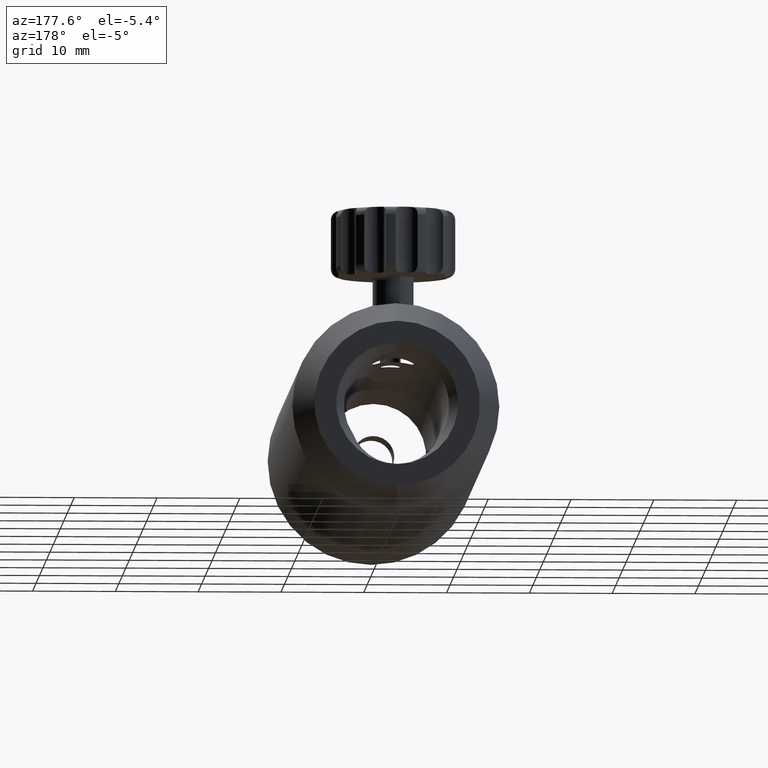
[diagram: clean part render]
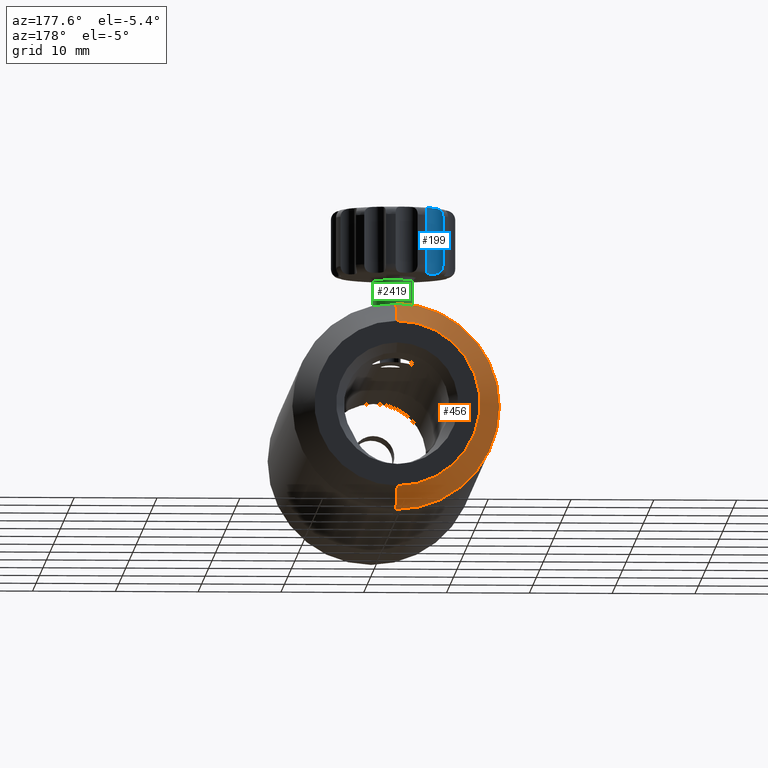
[diagram: same view with three faces highlighted in distinct colors, each labeled with its STEP entity id]
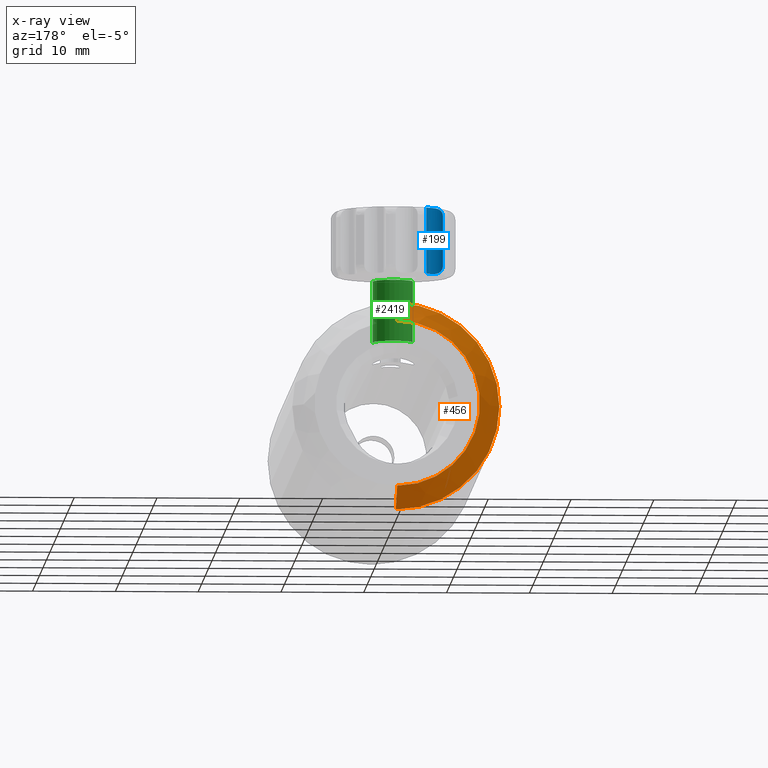
[diagram: x-ray of the same camera — body ghosted, the three highlighted faces saturated]
A machine part, auxiliary view with three faces highlighted in distinct colors.
The next image is the same camera in x-ray (body ghosted, the three faces saturated) — at least one of them is partly hidden behind the body in this view.
Their STEP definitions:

[orange] entity #456 — the highlighted conical surface has half-angle 32 deg.
#234 = CARTESIAN_POINT ( 'NONE',  ( 1.402682666781482000E-014, 62.47173567099246600, 12.49999999999999100 ) ) ;
#264 = CARTESIAN_POINT ( 'NONE',  ( 0.0000000000000000000, 62.47173567099246600, 0.0000000000000000000 ) ) ;
#281 = ORIENTED_EDGE ( 'NONE', *, *, #623, .T. ) ;
#432 = CARTESIAN_POINT ( 'NONE',  ( 1.121724019454641000E-014, 66.47173567099247300, 10.00052259236270500 ) ) ;
#456 = ADVANCED_FACE ( 'NONE', ( #2272 ), #2756, .T. ) ;
#569 = DIRECTION ( 'NONE',  ( -9.992007221626420700E-016, 0.0000000000000000000, -1.000000000000000000 ) ) ;
#617 = VECTOR ( 'NONE', #3233, 1000.000000000000100 ) ;
#623 = EDGE_CURVE ( 'NONE', #1648, #2306, #2044, .T. ) ;
#896 = DIRECTION ( 'NONE',  ( 1.502285461903961200E-018, -1.000000000000000000, -4.971860657915503100E-018 ) ) ;
#1253 = VERTEX_POINT ( 'NONE', #1361 ) ;
#1281 = VERTEX_POINT ( 'NONE', #234 ) ;
#1361 = CARTESIAN_POINT ( 'NONE',  ( -1.248399988518539900E-014, 62.47173567099246600, -12.49999999999999100 ) ) ;
#1362 = AXIS2_PLACEMENT_3D ( 'NONE', #2540, #1940, #2801 ) ;
#1429 = AXIS2_PLACEMENT_3D ( 'NONE', #1993, #3420, #1761 ) ;
#1525 = CARTESIAN_POINT ( 'NONE',  ( -9.992529396292632200E-015, 66.47173567099247300, -10.00052259236270500 ) ) ;
#1648 = VERTEX_POINT ( 'NONE', #3514 ) ;
#1696 = CARTESIAN_POINT ( 'NONE',  ( -9.992529396292632200E-015, 66.47173567099247300, -10.00052259236270500 ) ) ;
#1761 = DIRECTION ( 'NONE',  ( -9.992007221626420700E-016, 0.0000000000000000000, -1.000000000000000000 ) ) ;
#1940 = DIRECTION ( 'NONE',  ( 1.502285461903961200E-018, -1.000000000000000000, -4.971860657915503100E-018 ) ) ;
#1993 = CARTESIAN_POINT ( 'NONE',  ( 0.0000000000000000000, 66.47173567099247300, 0.0000000000000000000 ) ) ;
#2006 = EDGE_LOOP ( 'NONE', ( #2167, #281, #3330, #3327 ) ) ;
#2044 = CIRCLE ( 'NONE', #1362, 10.00052259236270500 ) ;
#2167 = ORIENTED_EDGE ( 'NONE', *, *, #3573, .F. ) ;
#2272 = FACE_OUTER_BOUND ( 'NONE', #2006, .T. ) ;
#2303 = EDGE_CURVE ( 'NONE', #1281, #1253, #2833, .T. ) ;
#2306 = VERTEX_POINT ( 'NONE', #1696 ) ;
#2470 = AXIS2_PLACEMENT_3D ( 'NONE', #264, #896, #569 ) ;
#2534 = VECTOR ( 'NONE', #3439, 1000.000000000000100 ) ;
#2540 = CARTESIAN_POINT ( 'NONE',  ( 0.0000000000000000000, 66.47173567099247300, 0.0000000000000000000 ) ) ;
#2756 = CONICAL_SURFACE ( 'NONE', #1429, 10.00052259236270500, 0.5585053606381802400 ) ;
#2801 = DIRECTION ( 'NONE',  ( -9.992007221626420700E-016, 0.0000000000000000000, -1.000000000000000000 ) ) ;
#2833 = CIRCLE ( 'NONE', #2470, 12.49999999999998600 ) ;
#3141 = EDGE_CURVE ( 'NONE', #2306, #1253, #3146, .T. ) ;
#3146 = LINE ( 'NONE', #1525, #2534 ) ;
#3233 = DIRECTION ( 'NONE',  ( 5.956661149105315200E-016, -0.8480480961564289500, 0.5299192642332000200 ) ) ;
#3320 = LINE ( 'NONE', #432, #617 ) ;
#3327 = ORIENTED_EDGE ( 'NONE', *, *, #2303, .F. ) ;
#3330 = ORIENTED_EDGE ( 'NONE', *, *, #3141, .T. ) ;
#3420 = DIRECTION ( 'NONE',  ( 1.502285461903961200E-018, -1.000000000000000000, -4.971860657915503100E-018 ) ) ;
#3439 = DIRECTION ( 'NONE',  ( -5.282217011838582700E-016, -0.8480480961564289500, -0.5299192642332000200 ) ) ;
#3514 = CARTESIAN_POINT ( 'NONE',  ( 1.262203343118063000E-014, 66.47173567099247300, 10.00052259236271500 ) ) ;
#3573 = EDGE_CURVE ( 'NONE', #1648, #1281, #3320, .T. ) ;

[blue] entity #199 — the highlighted cylindrical surface (edge-blend (fillet) strip) has radius 1.5 mm, axis along (-0, 0, -1).
#13 = LINE ( 'NONE', #625, #2568 ) ;
#21 = B_SPLINE_CURVE_WITH_KNOTS ( 'NONE', 3,
 ( #3154, #2293, #2024, #1211, #1500, #1776, #1675, #2779, #2542, #3089, #1684, #2495 ),
 .UNSPECIFIED., .F., .F.,
 ( 4, 2, 2, 2, 2, 4 ),
 ( 0.002250700025045506900, 0.002813171031116871800, 0.003375642037188237200, 0.003656877540223917500, 0.003938113043259597300, 0.004500584049330945800 ),
 .UNSPECIFIED. ) ;
#136 = CARTESIAN_POINT ( 'NONE',  ( -5.072901397835521700, 59.05412958879083600, 16.39540171856378600 ) ) ;
#186 = EDGE_CURVE ( 'NONE', #3363, #2063, #2434, .T. ) ;
#199 = ADVANCED_FACE ( 'NONE', ( #1112 ), #848, .F. ) ;
#202 = CARTESIAN_POINT ( 'NONE',  ( -3.880331937683143600, 59.81697460733942500, 24.34543162292353800 ) ) ;
#283 = CARTESIAN_POINT ( 'NONE',  ( -4.117641849008298200, 59.50284496503154200, 24.34999999999997700 ) ) ;
#417 = CARTESIAN_POINT ( 'NONE',  ( -4.526967578601089700, 59.20129711382363500, 16.34751958455900600 ) ) ;
#532 = CARTESIAN_POINT ( 'NONE',  ( -3.776553097164375000, 60.05770353819390600, 16.37992434585413900 ) ) ;
#554 = VERTEX_POINT ( 'NONE', #532 ) ;
#625 = CARTESIAN_POINT ( 'NONE',  ( -5.822271451217117600, 59.19943650208803400, 20.34999999999997700 ) ) ;
#647 = EDGE_CURVE ( 'NONE', #658, #554, #2966, .T. ) ;
#658 = VERTEX_POINT ( 'NONE', #1982 ) ;
#785 = CARTESIAN_POINT ( 'NONE',  ( -4.216923941984945600, 59.41820435759243700, 16.34999999999997700 ) ) ;
#794 = CARTESIAN_POINT ( 'NONE',  ( -3.819890182268797400, 59.93567552825479100, 16.36069694899006100 ) ) ;
#848 = CYLINDRICAL_SURFACE ( 'NONE', #1072, 1.500000000000003100 ) ;
#954 = EDGE_CURVE ( 'NONE', #2063, #554, #2377, .T. ) ;
#964 = CARTESIAN_POINT ( 'NONE',  ( -4.216914412153568200, 59.41821248195680000, 24.34999999999997700 ) ) ;
#989 = B_SPLINE_CURVE_WITH_KNOTS ( 'NONE', 3,
 ( #1136, #3656, #202, #3343, #283, #1613 ),
 .UNSPECIFIED., .F., .F.,
 ( 4, 2, 4 ),
 ( 0.001466424524454351900, 0.001858562274749929200, 0.002250700025045506900 ),
 .UNSPECIFIED. ) ;
#1033 = DIRECTION ( 'NONE',  ( 0.9423380927516600300, -0.3346623954811234800, 0.0000000000000000000 ) ) ;
#1072 = AXIS2_PLACEMENT_3D ( 'NONE', #2941, #1831, #1033 ) ;
#1112 = FACE_OUTER_BOUND ( 'NONE', #2884, .T. ) ;
#1128 = ORIENTED_EDGE ( 'NONE', *, *, #954, .F. ) ;
#1136 = CARTESIAN_POINT ( 'NONE',  ( -3.776553097158425600, 60.05770353821061700, 24.32007565414318900 ) ) ;
#1211 = CARTESIAN_POINT ( 'NONE',  ( -4.879166101778564800, 59.08048064492676600, 24.33131165049940100 ) ) ;
#1285 = CARTESIAN_POINT ( 'NONE',  ( -5.822271451217097200, 59.19943650208805500, 17.16187099171112600 ) ) ;
#1336 = CARTESIAN_POINT ( 'NONE',  ( -4.117359952566944000, 59.50308385392358400, 16.34999999999997700 ) ) ;
#1483 = CARTESIAN_POINT ( 'NONE',  ( -5.822271451217126500, 59.19943650208803400, 23.34999999999996900 ) ) ;
#1492 = ORIENTED_EDGE ( 'NONE', *, *, #647, .T. ) ;
#1500 = CARTESIAN_POINT ( 'NONE',  ( -5.069704273404506800, 59.05423315436900100, 24.30553950480662800 ) ) ;
#1562 = CARTESIAN_POINT ( 'NONE',  ( -4.216923941984945600, 59.41820435759243700, 16.34999999999997700 ) ) ;
#1613 = CARTESIAN_POINT ( 'NONE',  ( -4.216914412153568200, 59.41821248195680000, 24.34999999999997700 ) ) ;
#1669 = ORIENTED_EDGE ( 'NONE', *, *, #186, .F. ) ;
#1675 = CARTESIAN_POINT ( 'NONE',  ( -5.413751311141496100, 59.07463394209509700, 24.15030037055339600 ) ) ;
#1684 = CARTESIAN_POINT ( 'NONE',  ( -5.822271451218503200, 59.19943650208870900, 23.54040238234086500 ) ) ;
#1776 = CARTESIAN_POINT ( 'NONE',  ( -5.333232083304513300, 59.06396030356057700, 24.19668968370597600 ) ) ;
#1808 = ORIENTED_EDGE ( 'NONE', *, *, #2268, .F. ) ;
#1818 = CARTESIAN_POINT ( 'NONE',  ( -5.773140476955845200, 59.17358795661838400, 16.97473436945944100 ) ) ;
#1831 = DIRECTION ( 'NONE',  ( -1.320794089857396400E-015, 3.565610212294519300E-016, -1.000000000000000000 ) ) ;
#1982 = CARTESIAN_POINT ( 'NONE',  ( -3.776553097158425600, 60.05770353821061700, 24.32007565414318900 ) ) ;
#2024 = CARTESIAN_POINT ( 'NONE',  ( -4.526618120787031100, 59.20154355535974800, 24.35245110409378500 ) ) ;
#2063 = VERTEX_POINT ( 'NONE', #2074 ) ;
#2074 = CARTESIAN_POINT ( 'NONE',  ( -4.216923941984945600, 59.41820435759243700, 16.34999999999997700 ) ) ;
#2098 = CARTESIAN_POINT ( 'NONE',  ( -4.880636698562078400, 59.08010274281706100, 16.36882705403931100 ) ) ;
#2166 = VERTEX_POINT ( 'NONE', #1483 ) ;
#2171 = CARTESIAN_POINT ( 'NONE',  ( -4.028138766025162600, 59.60214722907998200, 16.34938421824422900 ) ) ;
#2268 = EDGE_CURVE ( 'NONE', #2166, #3363, #13, .T. ) ;
#2285 = EDGE_CURVE ( 'NONE', #3608, #2166, #21, .T. ) ;
#2293 = CARTESIAN_POINT ( 'NONE',  ( -4.359308095050677100, 59.29681810494140800, 24.34999999999998400 ) ) ;
#2377 = B_SPLINE_CURVE_WITH_KNOTS ( 'NONE', 3,
 ( #785, #1336, #2171, #2443, #794, #2736 ),
 .UNSPECIFIED., .F., .F.,
 ( 4, 2, 4 ),
 ( 0.002339469482553244600, 0.002731805380103765600, 0.003124141277654287100 ),
 .UNSPECIFIED. ) ;
#2434 = B_SPLINE_CURVE_WITH_KNOTS ( 'NONE', 3,
 ( #3191, #1285, #1818, #2653, #3510, #3206, #3492, #136, #2098, #417, #3220, #1562 ),
 .UNSPECIFIED., .F., .F.,
 ( 4, 2, 2, 2, 2, 4 ),
 ( 8.835109272916359000E-005, 0.0006511306901851788500, 0.0009325204889131889600, 0.001213910287641199000, 0.001776689885097221600, 0.002339469482553244600 ),
 .UNSPECIFIED. ) ;
#2443 = CARTESIAN_POINT ( 'NONE',  ( -3.880486044152697800, 59.81674440491354300, 16.35456208300845300 ) ) ;
#2495 = CARTESIAN_POINT ( 'NONE',  ( -5.822271451217126500, 59.19943650208803400, 23.34999999999996900 ) ) ;
#2542 = CARTESIAN_POINT ( 'NONE',  ( -5.621198203874795000, 59.12202172424896000, 23.96309205946241100 ) ) ;
#2550 = DIRECTION ( 'NONE',  ( -1.320794089857396400E-015, 3.565610212294519300E-016, -1.000000000000000000 ) ) ;
#2568 = VECTOR ( 'NONE', #2572, 1000.000000000000000 ) ;
#2572 = DIRECTION ( 'NONE',  ( -1.320794089857396400E-015, 3.565610212294519300E-016, -1.000000000000000000 ) ) ;
#2653 = CARTESIAN_POINT ( 'NONE',  ( -5.622288713885859000, 59.12233884413436200, 16.73812726182523000 ) ) ;
#2736 = CARTESIAN_POINT ( 'NONE',  ( -3.776553097164375000, 60.05770353819390600, 16.37992434585413900 ) ) ;
#2779 = CARTESIAN_POINT ( 'NONE',  ( -5.558499914504361400, 59.10377729270177100, 24.03319940243524800 ) ) ;
#2821 = CARTESIAN_POINT ( 'NONE',  ( -5.822271451217126500, 59.19943650208803400, 17.34999999999998400 ) ) ;
#2867 = VECTOR ( 'NONE', #2550, 1000.000000000000000 ) ;
#2884 = EDGE_LOOP ( 'NONE', ( #3494, #1492, #1128, #1669, #1808, #3278 ) ) ;
#2941 = CARTESIAN_POINT ( 'NONE',  ( -5.190060236289139300, 60.55969713142322800, 24.34999999999997700 ) ) ;
#2966 = LINE ( 'NONE', #3625, #2867 ) ;
#3089 = CARTESIAN_POINT ( 'NONE',  ( -5.771299482503027700, 59.17285790764457000, 23.72911589602803100 ) ) ;
#3154 = CARTESIAN_POINT ( 'NONE',  ( -4.216914412153568200, 59.41821248195680000, 24.34999999999997700 ) ) ;
#3191 = CARTESIAN_POINT ( 'NONE',  ( -5.822271451217126500, 59.19943650208803400, 17.34999999999998400 ) ) ;
#3206 = CARTESIAN_POINT ( 'NONE',  ( -5.416138015169672700, 59.07498750115088600, 16.55119712419116200 ) ) ;
#3220 = CARTESIAN_POINT ( 'NONE',  ( -4.359741823895869400, 59.29645039861053800, 16.34999999999998700 ) ) ;
#3278 = ORIENTED_EDGE ( 'NONE', *, *, #2285, .F. ) ;
#3343 = CARTESIAN_POINT ( 'NONE',  ( -4.028246890950413200, 59.60198385776369900, 24.35062046307281800 ) ) ;
#3351 = EDGE_CURVE ( 'NONE', #658, #3608, #989, .T. ) ;
#3363 = VERTEX_POINT ( 'NONE', #2821 ) ;
#3492 = CARTESIAN_POINT ( 'NONE',  ( -5.334501834138619000, 59.06411979155580400, 16.50402759177797700 ) ) ;
#3494 = ORIENTED_EDGE ( 'NONE', *, *, #3351, .F. ) ;
#3510 = CARTESIAN_POINT ( 'NONE',  ( -5.561147785622688700, 59.10444186891546500, 16.66939133577747600 ) ) ;
#3608 = VERTEX_POINT ( 'NONE', #964 ) ;
#3625 = CARTESIAN_POINT ( 'NONE',  ( -3.776553097161646100, 60.05770353820154400, 24.34999999999997700 ) ) ;
#3656 = CARTESIAN_POINT ( 'NONE',  ( -3.820030081487216100, 59.93528160182031400, 24.33936512020235900 ) ) ;

[green] entity #2419 — the highlighted cylindrical surface (edge-blend (fillet) strip) has radius 2.4702 mm, axis along (0, -0, 1).
#28 = DIRECTION ( 'NONE',  ( 1.320794089857396400E-015, -3.565610212294519300E-016, 1.000000000000000000 ) ) ;
#55 = CARTESIAN_POINT ( 'NONE',  ( -2.327721257236896200, 55.29840369805326400, 15.84999999999997100 ) ) ;
#342 = VERTEX_POINT ( 'NONE', #1121 ) ;
#424 = LINE ( 'NONE', #961, #1828 ) ;
#555 = CYLINDRICAL_SURFACE ( 'NONE', #1844, 2.470155112205955300 ) ;
#561 = FACE_OUTER_BOUND ( 'NONE', #1422, .T. ) ;
#661 = DIRECTION ( 'NONE',  ( -0.9423380927516602500, 0.3346623954811228700, 0.0000000000000000000 ) ) ;
#751 = CARTESIAN_POINT ( 'NONE',  ( 4.676777469572908100E-014, 54.47173567099248700, 8.464858828943423700 ) ) ;
#775 = DIRECTION ( 'NONE',  ( -0.9423380927516602500, 0.3346623954811229200, 0.0000000000000000000 ) ) ;
#910 = CARTESIAN_POINT ( 'NONE',  ( 1.311783443367546500E-013, 54.47173567099245900, 77.09721697122448300 ) ) ;
#937 = ORIENTED_EDGE ( 'NONE', *, *, #3423, .T. ) ;
#941 = CARTESIAN_POINT ( 'NONE',  ( -2.327721257236792200, 55.29840369805324200, 77.09721697122448300 ) ) ;
#961 = CARTESIAN_POINT ( 'NONE',  ( 2.327721257237054300, 53.64506764393166800, 77.09721697122448300 ) ) ;
#962 = DIRECTION ( 'NONE',  ( 1.320794089857396400E-015, -3.565610212294519300E-016, 1.000000000000000000 ) ) ;
#1006 = DIRECTION ( 'NONE',  ( 1.320794089857396400E-015, -3.565610212294519300E-016, 1.000000000000000000 ) ) ;
#1121 = CARTESIAN_POINT ( 'NONE',  ( 2.327721257236947200, 53.64506764393169600, 15.84999999999996800 ) ) ;
#1158 = EDGE_CURVE ( 'NONE', #2050, #1922, #2753, .T. ) ;
#1327 = DIRECTION ( 'NONE',  ( 1.320794089857396400E-015, -3.565610212294519300E-016, 1.000000000000000000 ) ) ;
#1383 = AXIS2_PLACEMENT_3D ( 'NONE', #751, #1327, #775 ) ;
#1422 = EDGE_LOOP ( 'NONE', ( #3606, #2097, #937, #1953 ) ) ;
#1828 = VECTOR ( 'NONE', #1006, 1000.000000000000000 ) ;
#1844 = AXIS2_PLACEMENT_3D ( 'NONE', #910, #962, #661 ) ;
#1922 = VERTEX_POINT ( 'NONE', #3321 ) ;
#1953 = ORIENTED_EDGE ( 'NONE', *, *, #2839, .F. ) ;
#1975 = EDGE_CURVE ( 'NONE', #2050, #342, #424, .T. ) ;
#2050 = VERTEX_POINT ( 'NONE', #2340 ) ;
#2097 = ORIENTED_EDGE ( 'NONE', *, *, #1158, .T. ) ;
#2284 = DIRECTION ( 'NONE',  ( -0.9423380927516602500, 0.3346623954811228700, 0.0000000000000000000 ) ) ;
#2340 = CARTESIAN_POINT ( 'NONE',  ( 2.327721257236962300, 53.64506764393168900, 8.464858828943420100 ) ) ;
#2419 = ADVANCED_FACE ( 'NONE', ( #561 ), #555, .T. ) ;
#2557 = DIRECTION ( 'NONE',  ( 1.320794089857396400E-015, -3.565610212294519300E-016, 1.000000000000000000 ) ) ;
#2562 = VERTEX_POINT ( 'NONE', #55 ) ;
#2576 = LINE ( 'NONE', #941, #3237 ) ;
#2753 = CIRCLE ( 'NONE', #1383, 2.470155112205954900 ) ;
#2839 = EDGE_CURVE ( 'NONE', #342, #2562, #2873, .T. ) ;
#2873 = CIRCLE ( 'NONE', #2876, 2.470155112205955300 ) ;
#2876 = AXIS2_PLACEMENT_3D ( 'NONE', #3359, #28, #2284 ) ;
#3237 = VECTOR ( 'NONE', #2557, 1000.000000000000000 ) ;
#3321 = CARTESIAN_POINT ( 'NONE',  ( -2.327721257236875700, 55.29840369805327100, 8.464858828943423700 ) ) ;
#3359 = CARTESIAN_POINT ( 'NONE',  ( 2.701658341486279400E-014, 54.47173567099248000, 15.84999999999997100 ) ) ;
#3423 = EDGE_CURVE ( 'NONE', #1922, #2562, #2576, .T. ) ;
#3606 = ORIENTED_EDGE ( 'NONE', *, *, #1975, .F. ) ;